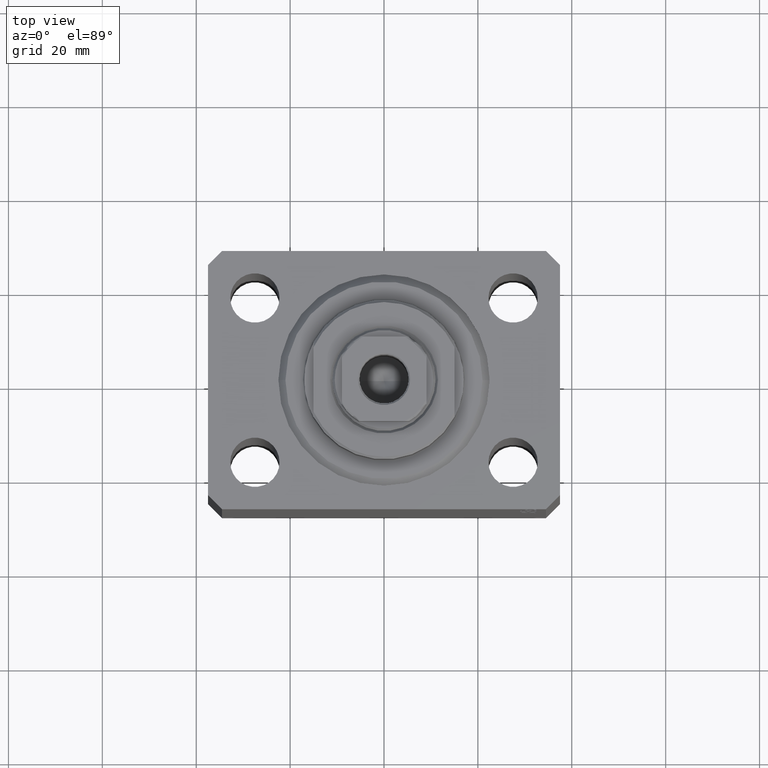
[diagram: clean part render]
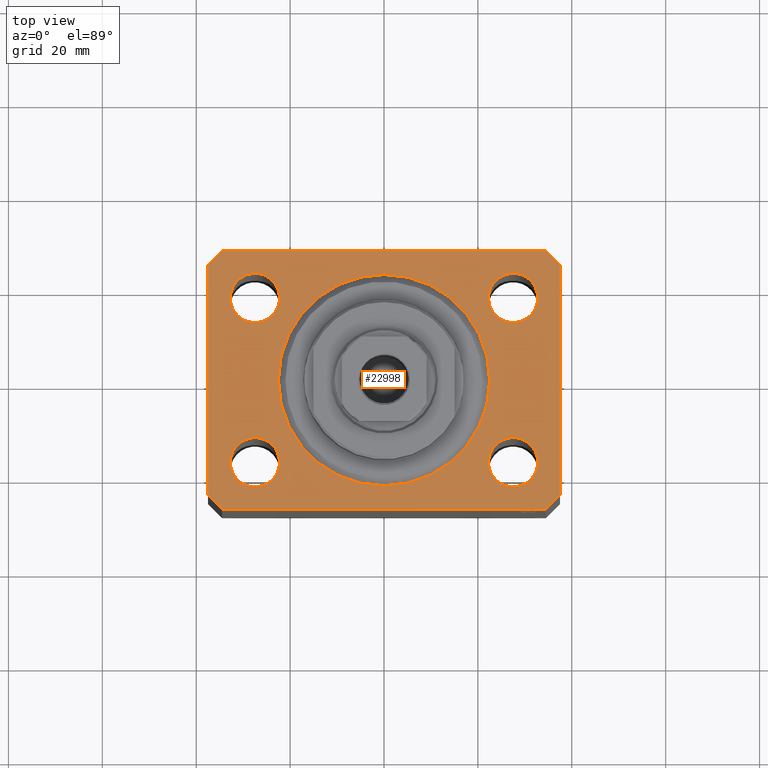
[diagram: same view with one face highlighted and labeled with its STEP entity id]
A machine part, top view. The second image highlights one B-rep face of the part: STEP entity #22998.
In plain terms, the highlighted planar face has unit normal (0, 0, 1).
Its self-contained STEP definition (entity closure, byte-faithful):
#221 = CARTESIAN_POINT ( 'NONE',  ( -37.49999999999999289, 24.50000000000000000, 0.000000000000000000 ) ) ;
#1088 = ORIENTED_EDGE ( 'NONE', *, *, #21646, .F. ) ;
#1213 = DIRECTION ( 'NONE',  ( 1.076236605503979380E-14, 1.000000000000000000, 0.000000000000000000 ) ) ;
#1485 = DIRECTION ( 'NONE',  ( 1.000000000000000000, 0.000000000000000000, 0.000000000000000000 ) ) ;
#1556 = DIRECTION ( 'NONE',  ( 1.000000000000000000, 0.000000000000000000, 0.000000000000000000 ) ) ;
#1682 = VECTOR ( 'NONE', #1213, 1000.000000000000000 ) ;
#1845 = CARTESIAN_POINT ( 'NONE',  ( 32.75000000000000000, 17.49999999999999289, 0.000000000000000000 ) ) ;
#2016 = DIRECTION ( 'NONE',  ( 1.000000000000000000, 0.000000000000000000, 0.000000000000000000 ) ) ;
#2015 = FACE_BOUND ( 'NONE', #32435, .T. ) ;
#2452 = CARTESIAN_POINT ( 'NONE',  ( -34.49999999999999289, 27.50000000000000000, 0.000000000000000000 ) ) ;
#2674 = DIRECTION ( 'NONE',  ( 0.000000000000000000, 0.000000000000000000, 1.000000000000000000 ) ) ;
#2904 = ORIENTED_EDGE ( 'NONE', *, *, #28240, .F. ) ;
#3264 = VECTOR ( 'NONE', #2016, 1000.000000000000000 ) ;
#4124 = ORIENTED_EDGE ( 'NONE', *, *, #23663, .F. ) ;
#4157 = VERTEX_POINT ( 'NONE', #9414 ) ;
#4164 = EDGE_LOOP ( 'NONE', ( #28456, #6552, #5745, #10488, #36553, #42429, #24321, #8456 ) ) ;
#4509 = ORIENTED_EDGE ( 'NONE', *, *, #28826, .F. ) ;
#4618 = VERTEX_POINT ( 'NONE', #37026 ) ;
#5228 = VERTEX_POINT ( 'NONE', #2452 ) ;
#5745 = ORIENTED_EDGE ( 'NONE', *, *, #29342, .T. ) ;
#6552 = ORIENTED_EDGE ( 'NONE', *, *, #42120, .T. ) ;
#7510 = DIRECTION ( 'NONE',  ( 1.000000000000000000, 0.000000000000000000, 0.000000000000000000 ) ) ;
#7831 = AXIS2_PLACEMENT_3D ( 'NONE', #35297, #35524, #1485 ) ;
#8305 = CARTESIAN_POINT ( 'NONE',  ( 27.50000000000000000, 17.49999999999999289, 0.000000000000000000 ) ) ;
#8352 = CARTESIAN_POINT ( 'NONE',  ( 27.50000000000000000, 17.49999999999999289, 0.000000000000000000 ) ) ;
#8442 = AXIS2_PLACEMENT_3D ( 'NONE', #19215, #43556, #40171 ) ;
#8456 = ORIENTED_EDGE ( 'NONE', *, *, #38167, .T. ) ;
#9053 = CARTESIAN_POINT ( 'NONE',  ( -34.49999999999999289, 27.50000000000000000, 0.000000000000000000 ) ) ;
#9414 = CARTESIAN_POINT ( 'NONE',  ( -22.50000000000000355, 2.755455298081545172E-15, 0.000000000000000000 ) ) ;
#9749 = VERTEX_POINT ( 'NONE', #14989 ) ;
#10044 = EDGE_CURVE ( 'NONE', #25059, #42052, #26261, .T. ) ;
#10103 = CIRCLE ( 'NONE', #28096, 5.250000000000000888 ) ;
#10161 = CARTESIAN_POINT ( 'NONE',  ( 37.50000000000051870, 24.49999999999995381, 0.000000000000000000 ) ) ;
#10421 = CIRCLE ( 'NONE', #41377, 22.50000000000000355 ) ;
#10488 = ORIENTED_EDGE ( 'NONE', *, *, #14102, .T. ) ;
#10817 = VERTEX_POINT ( 'NONE', #43094 ) ;
#10986 = CIRCLE ( 'NONE', #36910, 22.50000000000000355 ) ;
#11351 = CARTESIAN_POINT ( 'NONE',  ( 22.25000000000000000, 17.49999999999999289, 0.000000000000000000 ) ) ;
#11354 = DIRECTION ( 'NONE',  ( 0.000000000000000000, 0.000000000000000000, 1.000000000000000000 ) ) ;
#11560 = VECTOR ( 'NONE', #37656, 1000.000000000000114 ) ;
#11972 = AXIS2_PLACEMENT_3D ( 'NONE', #35293, #24265, #31695 ) ;
#12331 = VERTEX_POINT ( 'NONE', #23382 ) ;
#12351 = DIRECTION ( 'NONE',  ( 0.000000000000000000, 0.000000000000000000, 1.000000000000000000 ) ) ;
#12383 = FACE_BOUND ( 'NONE', #37646, .T. ) ;
#12534 = LINE ( 'NONE', #19532, #19558 ) ;
#12602 = EDGE_CURVE ( 'NONE', #18222, #20946, #27266, .T. ) ;
#12755 = CIRCLE ( 'NONE', #37225, 5.250000000000000888 ) ;
#12880 = DIRECTION ( 'NONE',  ( -0.7071067811865471286, -0.7071067811865479058, 0.000000000000000000 ) ) ;
#13124 = DIRECTION ( 'NONE',  ( -1.000000000000000000, 0.000000000000000000, 0.000000000000000000 ) ) ;
#13279 = AXIS2_PLACEMENT_3D ( 'NONE', #8352, #25712, #39447 ) ;
#13549 = ORIENTED_EDGE ( 'NONE', *, *, #37378, .F. ) ;
#13680 = VERTEX_POINT ( 'NONE', #17647 ) ;
#13899 = DIRECTION ( 'NONE',  ( 1.000000000000000000, 0.000000000000000000, 0.000000000000000000 ) ) ;
#14102 = EDGE_CURVE ( 'NONE', #9749, #12331, #12534, .T. ) ;
#14108 = VERTEX_POINT ( 'NONE', #40034 ) ;
#14474 = CARTESIAN_POINT ( 'NONE',  ( 34.49999999999999289, -27.49999999999999645, 0.000000000000000000 ) ) ;
#14506 = DIRECTION ( 'NONE',  ( 0.000000000000000000, 0.000000000000000000, 1.000000000000000000 ) ) ;
#14571 = CIRCLE ( 'NONE', #28959, 5.250000000000000888 ) ;
#14989 = CARTESIAN_POINT ( 'NONE',  ( -37.49999999999999289, -24.50000000000000000, 0.000000000000000000 ) ) ;
#15380 = CARTESIAN_POINT ( 'NONE',  ( -27.50000000000000000, 17.49999999999999645, 0.000000000000000000 ) ) ;
#15590 = LINE ( 'NONE', #9053, #39606 ) ;
#15762 = FACE_BOUND ( 'NONE', #32285, .T. ) ;
#16611 = AXIS2_PLACEMENT_3D ( 'NONE', #15380, #18987, #29132 ) ;
#17030 = CARTESIAN_POINT ( 'NONE',  ( -37.49999999999999289, 24.50000000000000000, 0.000000000000000000 ) ) ;
#17100 = EDGE_CURVE ( 'NONE', #37476, #13680, #21497, .T. ) ;
#17647 = CARTESIAN_POINT ( 'NONE',  ( 37.50000000000051870, 24.49999999999995381, 0.000000000000000000 ) ) ;
#17897 = CARTESIAN_POINT ( 'NONE',  ( 37.49999999999999289, -24.50000000000000000, 0.000000000000000000 ) ) ;
#18222 = VERTEX_POINT ( 'NONE', #35635 ) ;
#18369 = EDGE_CURVE ( 'NONE', #12331, #33222, #43496, .T. ) ;
#18987 = DIRECTION ( 'NONE',  ( 0.000000000000000000, 0.000000000000000000, 1.000000000000000000 ) ) ;
#19215 = CARTESIAN_POINT ( 'NONE',  ( -27.49999999999999289, -17.50000000000000000, 0.000000000000000000 ) ) ;
#19532 = CARTESIAN_POINT ( 'NONE',  ( -37.49999999999999289, -24.50000000000000000, 0.000000000000000000 ) ) ;
#19558 = VECTOR ( 'NONE', #23361, 1000.000000000000000 ) ;
#19881 = VERTEX_POINT ( 'NONE', #28982 ) ;
#20351 = EDGE_CURVE ( 'NONE', #14108, #5228, #44020, .T. ) ;
#20754 = LINE ( 'NONE', #10161, #11560 ) ;
#20946 = VERTEX_POINT ( 'NONE', #42909 ) ;
#21075 = CARTESIAN_POINT ( 'NONE',  ( -32.75000000000000000, 17.49999999999999645, 0.000000000000000000 ) ) ;
#21376 = CIRCLE ( 'NONE', #8442, 5.250000000000000888 ) ;
#21497 = LINE ( 'NONE', #17897, #1682 ) ;
#21646 = EDGE_CURVE ( 'NONE', #10817, #4157, #10421, .T. ) ;
#22642 = DIRECTION ( 'NONE',  ( 0.000000000000000000, 0.000000000000000000, 1.000000000000000000 ) ) ;
#22998 = ADVANCED_FACE ( 'NONE', ( #2015, #15762, #29511, #43267, #12383, #42056 ), #37996, .T. ) ;
#23246 = ORIENTED_EDGE ( 'NONE', *, *, #35011, .F. ) ;
#23361 = DIRECTION ( 'NONE',  ( 0.7071067811865483499, -0.7071067811865466846, 0.000000000000000000 ) ) ;
#23369 = EDGE_CURVE ( 'NONE', #19881, #40703, #12755, .T. ) ;
#23382 = CARTESIAN_POINT ( 'NONE',  ( -34.49999999999998579, -27.49999999999999645, 0.000000000000000000 ) ) ;
#23547 = ORIENTED_EDGE ( 'NONE', *, *, #12602, .F. ) ;
#23663 = EDGE_CURVE ( 'NONE', #35990, #4618, #21376, .T. ) ;
#24265 = DIRECTION ( 'NONE',  ( 0.000000000000000000, 0.000000000000000000, 1.000000000000000000 ) ) ;
#24321 = ORIENTED_EDGE ( 'NONE', *, *, #17100, .T. ) ;
#24427 = CARTESIAN_POINT ( 'NONE',  ( -27.50000000000000000, 17.49999999999999645, 0.000000000000000000 ) ) ;
#25059 = VERTEX_POINT ( 'NONE', #11351 ) ;
#25071 = EDGE_LOOP ( 'NONE', ( #4509, #23547 ) ) ;
#25542 = VERTEX_POINT ( 'NONE', #221 ) ;
#25712 = DIRECTION ( 'NONE',  ( 0.000000000000000000, 0.000000000000000000, 1.000000000000000000 ) ) ;
#26261 = CIRCLE ( 'NONE', #13279, 5.250000000000000888 ) ;
#26401 = ORIENTED_EDGE ( 'NONE', *, *, #10044, .F. ) ;
#26556 = CARTESIAN_POINT ( 'NONE',  ( 27.49999999999999289, -17.50000000000000000, 0.000000000000000000 ) ) ;
#27266 = CIRCLE ( 'NONE', #7831, 5.250000000000000888 ) ;
#27318 = EDGE_LOOP ( 'NONE', ( #36256, #26401 ) ) ;
#28096 = AXIS2_PLACEMENT_3D ( 'NONE', #37343, #41182, #13899 ) ;
#28240 = EDGE_CURVE ( 'NONE', #4157, #10817, #10986, .T. ) ;
#28456 = ORIENTED_EDGE ( 'NONE', *, *, #20351, .T. ) ;
#28826 = EDGE_CURVE ( 'NONE', #20946, #18222, #32637, .T. ) ;
#28959 = AXIS2_PLACEMENT_3D ( 'NONE', #8305, #12351, #1556 ) ;
#28982 = CARTESIAN_POINT ( 'NONE',  ( -22.25000000000000000, 17.49999999999999645, 0.000000000000000000 ) ) ;
#29061 = ORIENTED_EDGE ( 'NONE', *, *, #23369, .F. ) ;
#29132 = DIRECTION ( 'NONE',  ( 1.000000000000000000, 0.000000000000000000, 0.000000000000000000 ) ) ;
#29342 = EDGE_CURVE ( 'NONE', #25542, #9749, #34164, .T. ) ;
#29511 = FACE_BOUND ( 'NONE', #25071, .T. ) ;
#30490 = CARTESIAN_POINT ( 'NONE',  ( 34.50000000000056843, 27.50000000000000000, 0.000000000000000000 ) ) ;
#31695 = DIRECTION ( 'NONE',  ( 1.000000000000000000, 0.000000000000000000, -0.000000000000000000 ) ) ;
#32285 = EDGE_LOOP ( 'NONE', ( #13549, #4124 ) ) ;
#32369 = EDGE_CURVE ( 'NONE', #42052, #25059, #14571, .T. ) ;
#32435 = EDGE_LOOP ( 'NONE', ( #1088, #2904 ) ) ;
#32637 = CIRCLE ( 'NONE', #34068, 5.250000000000000888 ) ;
#33151 = VECTOR ( 'NONE', #41713, 1000.000000000000114 ) ;
#33222 = VERTEX_POINT ( 'NONE', #14474 ) ;
#34068 = AXIS2_PLACEMENT_3D ( 'NONE', #26556, #2674, #40525 ) ;
#34164 = LINE ( 'NONE', #17030, #36226 ) ;
#35011 = EDGE_CURVE ( 'NONE', #40703, #19881, #36033, .T. ) ;
#35088 = CARTESIAN_POINT ( 'NONE',  ( 37.49999999999999289, -24.50000000000000000, 0.000000000000000000 ) ) ;
#35293 = CARTESIAN_POINT ( 'NONE',  ( 0.000000000000000000, 0.000000000000000000, 0.000000000000000000 ) ) ;
#35297 = CARTESIAN_POINT ( 'NONE',  ( 27.49999999999999289, -17.50000000000000000, 0.000000000000000000 ) ) ;
#35524 = DIRECTION ( 'NONE',  ( 0.000000000000000000, 0.000000000000000000, 1.000000000000000000 ) ) ;
#35635 = CARTESIAN_POINT ( 'NONE',  ( 22.24999999999999289, -17.50000000000000000, 0.000000000000000000 ) ) ;
#35990 = VERTEX_POINT ( 'NONE', #36782 ) ;
#36033 = CIRCLE ( 'NONE', #16611, 5.250000000000000888 ) ;
#36226 = VECTOR ( 'NONE', #40611, 1000.000000000000000 ) ;
#36256 = ORIENTED_EDGE ( 'NONE', *, *, #32369, .F. ) ;
#36553 = ORIENTED_EDGE ( 'NONE', *, *, #18369, .T. ) ;
#36782 = CARTESIAN_POINT ( 'NONE',  ( -32.74999999999999289, -17.50000000000000000, 0.000000000000000000 ) ) ;
#36910 = AXIS2_PLACEMENT_3D ( 'NONE', #38632, #11354, #38852 ) ;
#37026 = CARTESIAN_POINT ( 'NONE',  ( -22.24999999999999289, -17.50000000000000000, 0.000000000000000000 ) ) ;
#37225 = AXIS2_PLACEMENT_3D ( 'NONE', #24427, #14506, #7510 ) ;
#37343 = CARTESIAN_POINT ( 'NONE',  ( -27.49999999999999289, -17.50000000000000000, 0.000000000000000000 ) ) ;
#37378 = EDGE_CURVE ( 'NONE', #4618, #35990, #10103, .T. ) ;
#37476 = VERTEX_POINT ( 'NONE', #35088 ) ;
#37646 = EDGE_LOOP ( 'NONE', ( #29061, #23246 ) ) ;
#37656 = DIRECTION ( 'NONE',  ( -0.7071067811865364705, 0.7071067811865584529, 0.000000000000000000 ) ) ;
#37996 = PLANE ( 'NONE',  #11972 ) ;
#38167 = EDGE_CURVE ( 'NONE', #13680, #14108, #20754, .T. ) ;
#38327 = CARTESIAN_POINT ( 'NONE',  ( 34.49999999999999289, -27.49999999999999645, 0.000000000000000000 ) ) ;
#38573 = VECTOR ( 'NONE', #13124, 1000.000000000000000 ) ;
#38632 = CARTESIAN_POINT ( 'NONE',  ( 0.000000000000000000, 0.000000000000000000, 0.000000000000000000 ) ) ;
#38852 = DIRECTION ( 'NONE',  ( 1.000000000000000000, 0.000000000000000000, 0.000000000000000000 ) ) ;
#39447 = DIRECTION ( 'NONE',  ( 1.000000000000000000, 0.000000000000000000, 0.000000000000000000 ) ) ;
#39606 = VECTOR ( 'NONE', #12880, 1000.000000000000000 ) ;
#40034 = CARTESIAN_POINT ( 'NONE',  ( 34.50000000000056843, 27.50000000000000000, 0.000000000000000000 ) ) ;
#40171 = DIRECTION ( 'NONE',  ( 1.000000000000000000, 0.000000000000000000, 0.000000000000000000 ) ) ;
#40436 = DIRECTION ( 'NONE',  ( 1.000000000000000000, 0.000000000000000000, 0.000000000000000000 ) ) ;
#40525 = DIRECTION ( 'NONE',  ( 1.000000000000000000, 0.000000000000000000, 0.000000000000000000 ) ) ;
#40611 = DIRECTION ( 'NONE',  ( 0.000000000000000000, -1.000000000000000000, 0.000000000000000000 ) ) ;
#40703 = VERTEX_POINT ( 'NONE', #21075 ) ;
#41182 = DIRECTION ( 'NONE',  ( 0.000000000000000000, 0.000000000000000000, 1.000000000000000000 ) ) ;
#41377 = AXIS2_PLACEMENT_3D ( 'NONE', #43376, #22642, #40436 ) ;
#41713 = DIRECTION ( 'NONE',  ( 0.7071067811865474617, 0.7071067811865474617, 0.000000000000000000 ) ) ;
#42052 = VERTEX_POINT ( 'NONE', #1845 ) ;
#42056 = FACE_OUTER_BOUND ( 'NONE', #4164, .T. ) ;
#42120 = EDGE_CURVE ( 'NONE', #5228, #25542, #15590, .T. ) ;
#42268 = EDGE_CURVE ( 'NONE', #33222, #37476, #42606, .T. ) ;
#42429 = ORIENTED_EDGE ( 'NONE', *, *, #42268, .T. ) ;
#42606 = LINE ( 'NONE', #38327, #33151 ) ;
#42909 = CARTESIAN_POINT ( 'NONE',  ( 32.74999999999999289, -17.50000000000000000, 0.000000000000000000 ) ) ;
#43094 = CARTESIAN_POINT ( 'NONE',  ( 22.50000000000000355, 0.000000000000000000, 0.000000000000000000 ) ) ;
#43267 = FACE_BOUND ( 'NONE', #27318, .T. ) ;
#43376 = CARTESIAN_POINT ( 'NONE',  ( 0.000000000000000000, 0.000000000000000000, 0.000000000000000000 ) ) ;
#43496 = LINE ( 'NONE', #43946, #3264 ) ;
#43556 = DIRECTION ( 'NONE',  ( 0.000000000000000000, 0.000000000000000000, 1.000000000000000000 ) ) ;
#43946 = CARTESIAN_POINT ( 'NONE',  ( -34.49999999999998579, -27.49999999999999645, 0.000000000000000000 ) ) ;
#44020 = LINE ( 'NONE', #30490, #38573 ) ;